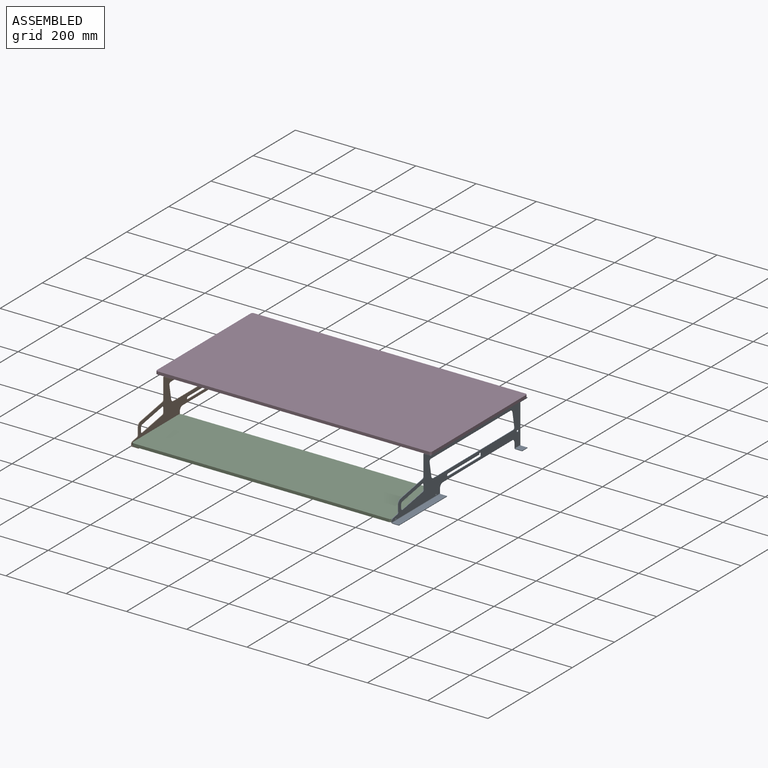
[diagram: assembled view]
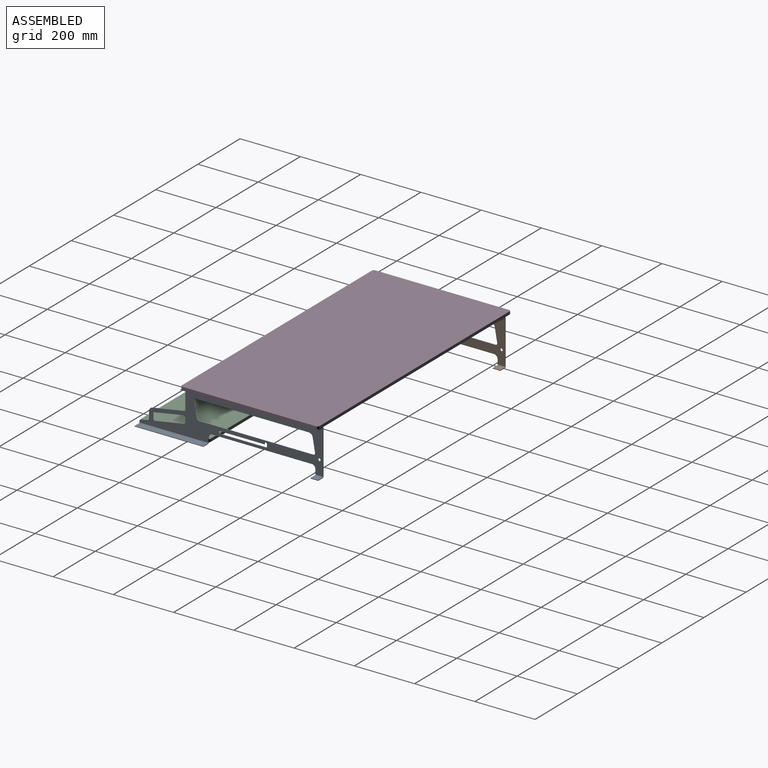
[diagram: assembled view, second angle]
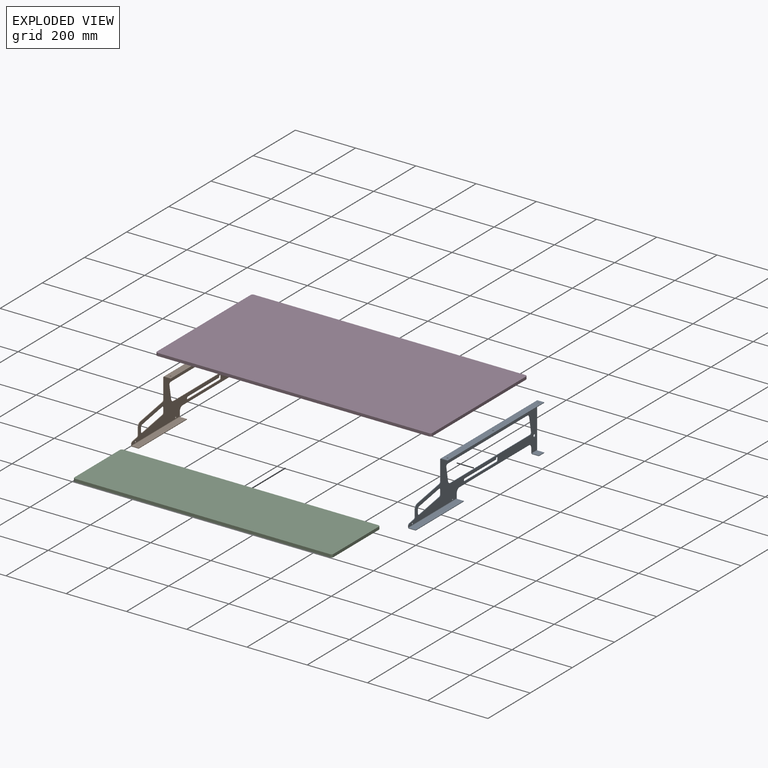
[diagram: exploded view]
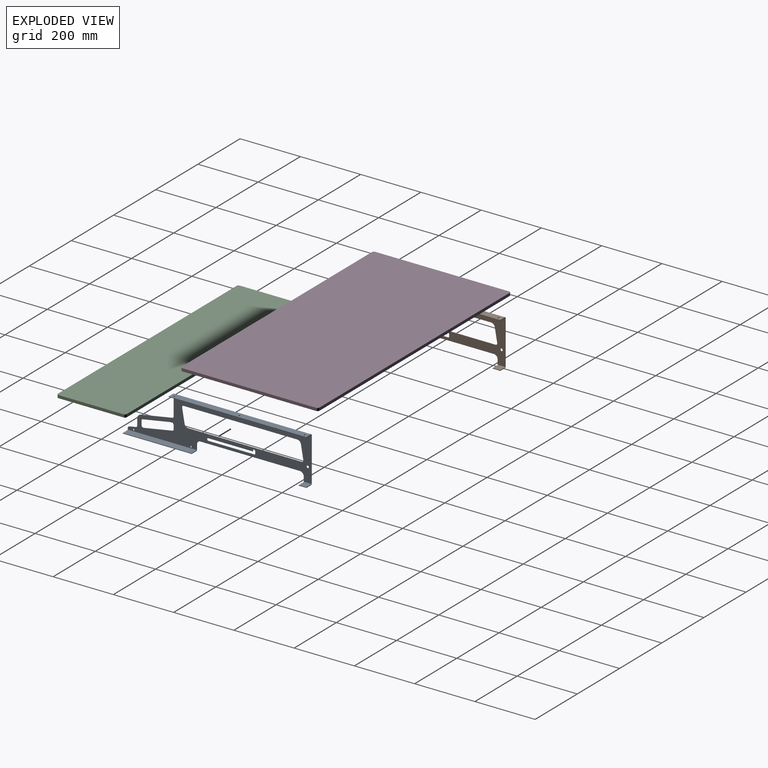
[diagram: exploded view, second angle]
ASSEMBLY  parts=4 mates=5
PART A: 73 faces, bbox 25.4x609.6x152.4 mm
  f0: cylinder r=12.7mm len=12.7mm, axis (1,0,0), area 38mm2, adj f1,f39,f41,f42
  f1: plane 330.2x1.91mm, normal (0,0,-1), area 629mm2, adj f0,f2,f41,f42
  f2: cylinder r=12.7mm len=12.7mm, axis (1,0,0), area 38mm2, adj f1,f3,f41,f42
  f3: plane 15.24x1.91mm, normal (0,1,0), area 29mm2, adj f2,f41,f42,f61
  f4: plane 3.56x1.91mm, normal (0,-1,0), area 6.8mm2, adj f5,f41,f42,f60
  f5: cylinder r=6.35mm len=6.25mm, axis (1,0,0), area 16.9mm2, adj f4,f6,f41,f42
  f6: plane 21.26x3.75mm, normal (0,-0.17,0.98), area 41.1mm2, adj f5,f7,f41,f42
  f7: cylinder r=6.35mm len=6.25mm, axis (1,0,0), area 16.9mm2, adj f6,f8,f41,f42
  f8: plane 22.7x1.91mm, normal (0,-1,0), area 43.2mm2, adj f7,f9,f41,f42
  f9: cylinder r=12.7mm len=12.51mm, axis (1,0,0), area 33.8mm2, adj f8,f10,f41,f42
  f10: plane 104.91x18.5mm, normal (0,-0.17,0.98), area 202.9mm2, adj f9,f11,f41,f42
  f11: cylinder r=6.35mm len=6.25mm, axis (1,0,0), area 16.9mm2, adj f10,f12,f41,f42
  f12: plane 65x1.91mm, normal (0,-1,0), area 123.8mm2, adj f11,f41,f42,f52
  f13: plane 144.78x1.91mm, normal (0,1,0), area 275.8mm2, adj f41,f42,f51,f70
  f14: cylinder r=6.35mm len=6.25mm, axis (1,0,0), area 16.9mm2, adj f15,f38,f41,f42
  f15: plane 12.9x1.91mm, normal (0,-1,0), area 24.6mm2, adj f14,f16,f41,f42
  f16: cylinder r=6.35mm len=7.45mm, axis (1,0,0), area 21.1mm2, adj f15,f17,f41,f42
  f17: plane 95.25x16.8mm, normal (0,0.17,-0.98), area 184.3mm2, adj f16,f18,f41,f42
  f18: cylinder r=6.35mm len=6.25mm, axis (1,0,0), area 16.9mm2, adj f17,f19,f41,f42
  f19: plane 12.9x1.91mm, normal (0,1,0), area 24.6mm2, adj f18,f20,f41,f42
  f20: cylinder r=6.35mm len=7.45mm, axis (1,0,0), area 21.1mm2, adj f19,f38,f41,f42
  f21: cylinder r=6.35mm len=7.45mm, axis (1,0,0), area 21.1mm2, adj f22,f37,f41,f42
  f22: plane 45.55x8.03mm, normal (0,-0.98,-0.17), area 88.1mm2, adj f21,f23,f41,f42
  f23: cylinder r=12.7mm len=12.51mm, axis (1,0,0), area 33.8mm2, adj f22,f24,f41,f42
  f24: plane 376.98x1.91mm, normal (0,0,-1), area 718.1mm2, adj f23,f25,f41,f42
  f25: cylinder r=6.35mm len=7.45mm, axis (1,0,0), area 21.1mm2, adj f24,f26,f41,f42
  f26: plane 45.55x8.03mm, normal (0,0.98,0.17), area 88.1mm2, adj f25,f27,f41,f42
  f27: cylinder r=12.7mm len=12.51mm, axis (1,0,0), area 33.8mm2, adj f26,f37,f41,f42
  f28: cylinder r=4.19mm len=8.38mm, axis (1,0,0), area 25.1mm2, adj f29,f34,f41,f42
  f29: plane 152.4x1.91mm, normal (0,0,1), area 290.3mm2, adj f28,f30,f41,f42
  f30: cylinder r=4.19mm len=4.19mm, axis (1,0,0), area 12.5mm2, adj f29,f31,f41,f42
  f31: plane 4.19x1.91mm, normal (0,-1,0), area 8mm2, adj f30,f32,f41,f42
  f32: plane 1.91x0.6mm, normal (0,0,-1), area 1.1mm2, adj f31,f33,f41,f42
  f33: cylinder r=4.19mm len=8.38mm, axis (1,0,0), area 33.7mm2, adj f32,f34,f41,f42
  f34: plane 148.81x1.91mm, normal (0,0,-1), area 283.5mm2, adj f28,f33,f41,f42
  f35: cylinder r=2.39mm len=4.78mm, axis (1,0,0), area 28.6mm2, adj f41,f42
  f36: cylinder r=2.39mm len=4.78mm, axis (1,0,0), area 28.6mm2, adj f41,f42
  f37: plane 376.98x1.91mm, normal (0,0,1), area 718.1mm2, adj f21,f27,f41,f42
  f38: plane 95.25x16.8mm, normal (0,-0.17,0.98), area 184.3mm2, adj f14,f20,f41,f42
  f39: plane 15.24x1.91mm, normal (0,-1,0), area 29mm2, adj f0,f41,f42,f69
  f40: cylinder r=4.19mm len=8.38mm, axis (1,0,0), area 50.2mm2, adj f41,f42
  f41: plane 609.6x144.78mm, normal (-1,0,0), area 35136.8mm2, adj f0,f1,f2,f3,f4,f5,f6,f7
  f42: plane 609.6x144.78mm, normal (1,0,0), area 35136.8mm2, adj f0,f1,f2,f3,f4,f5,f6,f7
  f43: plane 21.59x1.91mm, normal (0,1,0), area 41.1mm2, adj f48,f49,f50,f51
  f44: plane 21.59x1.91mm, normal (0,-1,0), area 41.1mm2, adj f48,f49,f50,f52
  f45: cylinder r=2.38mm len=4.76mm, axis (0,0,1), area 28.5mm2, adj f49,f50
  f46: cylinder r=2.38mm len=4.76mm, axis (0,0,1), area 28.5mm2, adj f49,f50
  f47: cylinder r=2.38mm len=4.76mm, axis (0,0,1), area 28.5mm2, adj f49,f50
  f48: plane 457.2x1.91mm, normal (1,0,0), area 871mm2, adj f43,f44,f49,f50
  f49: plane 457.2x21.59mm, normal (0,0,1), area 9817.5mm2, adj f43,f44,f45,f46,f47,f48,f53
  f50: plane 457.2x21.59mm, normal (0,0,-1), area 9817.5mm2, adj f43,f44,f45,f46,f47,f48,f54
  f51: plane 3.81x3.81mm, normal (0,1,0), area 8.6mm2, adj f13,f43,f53,f54
  f52: plane 3.81x3.81mm, normal (0,-1,0), area 8.6mm2, adj f12,f44,f53,f54
  f53: cylinder r=3.81mm len=457.2mm, axis (0,1,0), area 2736.2mm2, adj f41,f49,f51,f52
  f54: cylinder r=1.91mm len=457.2mm, axis (0,1,0), area 1368.1mm2, adj f42,f50,f51,f52
  f55: plane 228.6x1.91mm, normal (1,0,0), area 435.5mm2, adj f56,f57,f58,f59
  f56: plane 21.59x1.91mm, normal (0,-1,0), area 41.1mm2, adj f55,f58,f59,f60
  f57: plane 21.59x1.91mm, normal (0,1,0), area 41.1mm2, adj f55,f58,f59,f61
  f58: plane 228.6x21.59mm, normal (0,0,-1), area 4935.5mm2, adj f55,f56,f57,f62
  f59: plane 228.6x21.59mm, normal (0,0,1), area 4935.5mm2, adj f55,f56,f57,f63
  f60: plane 3.81x3.81mm, normal (0,-1,0), area 8.6mm2, adj f4,f56,f62,f63
  f61: plane 3.81x3.81mm, normal (0,1,0), area 8.6mm2, adj f3,f57,f62,f63
  f62: cylinder r=3.81mm len=228.6mm, axis (0,-1,0), area 1368.1mm2, adj f41,f58,f60,f61
  f63: cylinder r=1.91mm len=228.6mm, axis (0,-1,0), area 684.1mm2, adj f42,f59,f60,f61
  f64: plane 21.59x1.91mm, normal (0,1,0), area 41.1mm2, adj f65,f67,f68,f70
  f65: plane 25.4x1.91mm, normal (1,0,0), area 48.4mm2, adj f64,f66,f67,f68
  f66: plane 21.59x1.91mm, normal (0,-1,0), area 41.1mm2, adj f65,f67,f68,f69
  f67: plane 25.4x21.59mm, normal (0,0,-1), area 548.4mm2, adj f64,f65,f66,f71
  f68: plane 25.4x21.59mm, normal (0,0,1), area 548.4mm2, adj f64,f65,f66,f72
  f69: plane 3.81x3.81mm, normal (0,-1,0), area 8.6mm2, adj f39,f66,f71,f72
  f70: plane 3.81x3.81mm, normal (0,1,0), area 8.6mm2, adj f13,f64,f71,f72
  f71: cylinder r=3.81mm len=25.4mm, axis (0,-1,0), area 152mm2, adj f41,f67,f69,f70
  f72: cylinder r=1.91mm len=25.4mm, axis (0,-1,0), area 76mm2, adj f42,f68,f69,f70
PART B: same geometry as A
PART C: 10 faces, bbox 859.8x228.6x9.5 mm
  f0: plane 215.9x9.53mm, normal (1,0,0), area 2056.4mm2, adj f4,f5,f6,f9
  f1: plane 847.09x9.53mm, normal (0,1,0), area 8068.5mm2, adj f4,f5,f6,f7
  f2: plane 215.9x9.53mm, normal (-1,0,0), area 2056.4mm2, adj f4,f5,f7,f8
  f3: plane 847.09x9.53mm, normal (0,-1,0), area 8068.5mm2, adj f4,f5,f8,f9
  f4: plane 859.79x228.6mm, normal (0,0,-1), area 196513.4mm2, adj f0,f1,f2,f3,f6,f7,f8,f9
  f5: plane 859.79x228.6mm, normal (0,0,1), area 196513.4mm2, adj f0,f1,f2,f3,f6,f7,f8,f9
  f6: cylinder r=6.35mm len=9.53mm, axis (0,0,1), area 95mm2, adj f0,f1,f4,f5
  f7: cylinder r=6.35mm len=9.53mm, axis (0,0,1), area 95mm2, adj f1,f2,f4,f5
  f8: cylinder r=6.35mm len=9.53mm, axis (0,0,-1), area 95mm2, adj f2,f3,f4,f5
  f9: cylinder r=6.35mm len=9.53mm, axis (0,0,-1), area 95mm2, adj f0,f3,f4,f5
PART D: 10 faces, bbox 914.4x457.2x9.5 mm
  f0: plane 444.5x9.53mm, normal (1,0,0), area 4233.9mm2, adj f4,f5,f6,f9
  f1: plane 901.7x9.53mm, normal (0,1,0), area 8588.7mm2, adj f4,f5,f6,f7
  f2: plane 444.5x9.53mm, normal (-1,0,0), area 4233.9mm2, adj f4,f5,f7,f8
  f3: plane 901.7x9.53mm, normal (0,-1,0), area 8588.7mm2, adj f4,f5,f8,f9
  f4: plane 914.4x457.2mm, normal (0,0,-1), area 418029.1mm2, adj f0,f1,f2,f3,f6,f7,f8,f9
  f5: plane 914.4x457.2mm, normal (0,0,1), area 418029.1mm2, adj f0,f1,f2,f3,f6,f7,f8,f9
  f6: cylinder r=6.35mm len=9.53mm, axis (0,0,1), area 95mm2, adj f0,f1,f4,f5
  f7: cylinder r=6.35mm len=9.53mm, axis (0,0,1), area 95mm2, adj f1,f2,f4,f5
  f8: cylinder r=6.35mm len=9.53mm, axis (0,0,-1), area 95mm2, adj f2,f3,f4,f5
  f9: cylinder r=6.35mm len=9.53mm, axis (0,0,-1), area 95mm2, adj f0,f3,f4,f5
PLACE A t=(485.51,0,-161.93)mm
PLACE B t=(-378.09,0,-161.93)mm
PLACE C t=(27.31,-152.4,-150.5)mm
PLACE D at identity fixed
MATE planar B.f56 <-> C.f3  axis (0,-1,0) through (-363.49,-152.4,-160.97)mm
MATE planar B.f59 <-> C.f4  axis (0,0,1) through (-363.49,-38.1,-160.02)mm
MATE planar B.f49 <-> D.f4  axis (0,0,1) through (-363.49,228.6,-9.52)mm
MATE planar B.f44 <-> D.f3  axis (0,-1,0) through (-363.49,0,-10.48)mm
MATE planar C.f2 <-> B.f42  axis (-1,0,0) through (-376.19,-38.1,-155.26)mm
